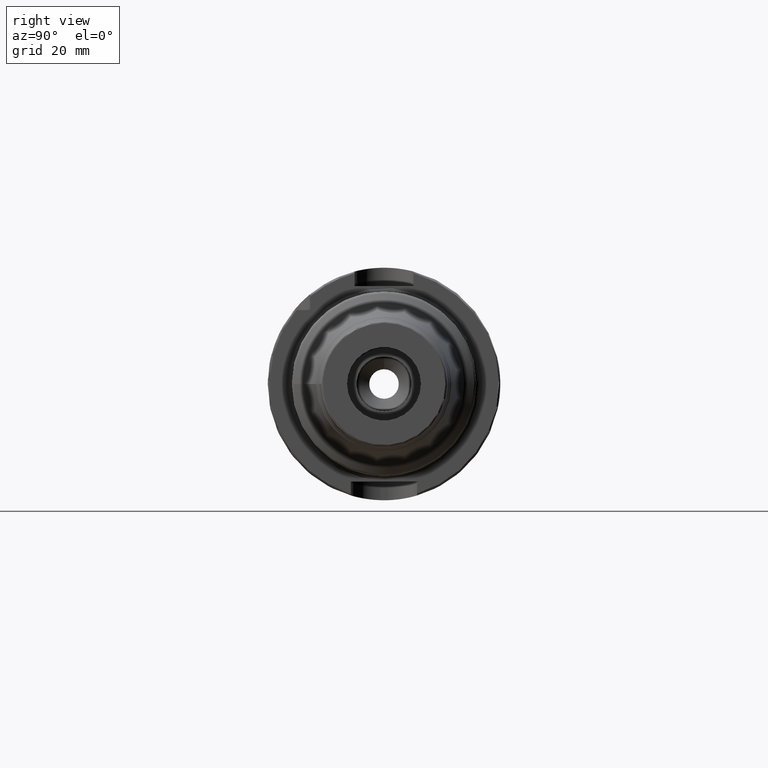
[diagram: clean part render]
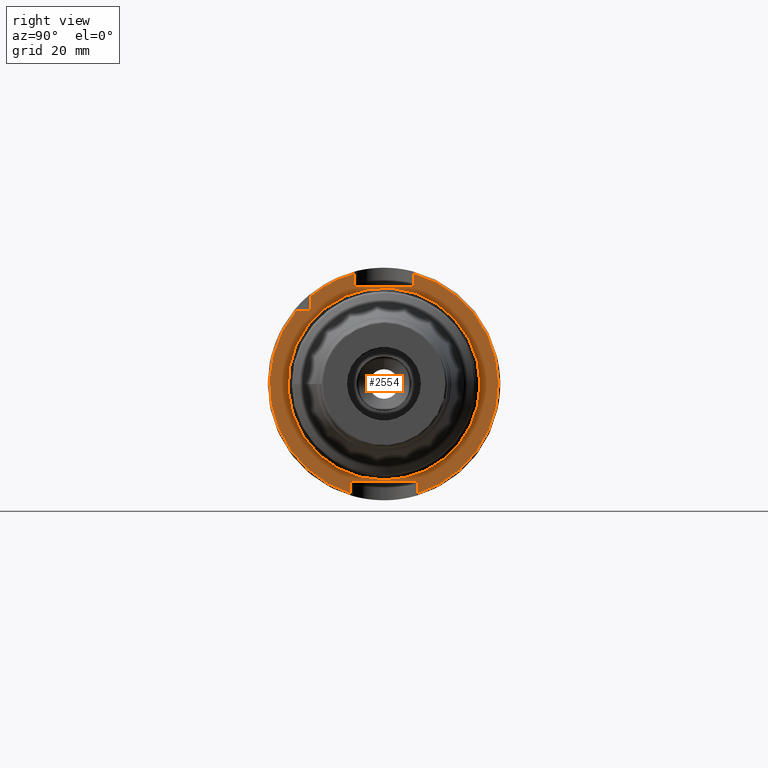
[diagram: same view with one face highlighted and labeled with its STEP entity id]
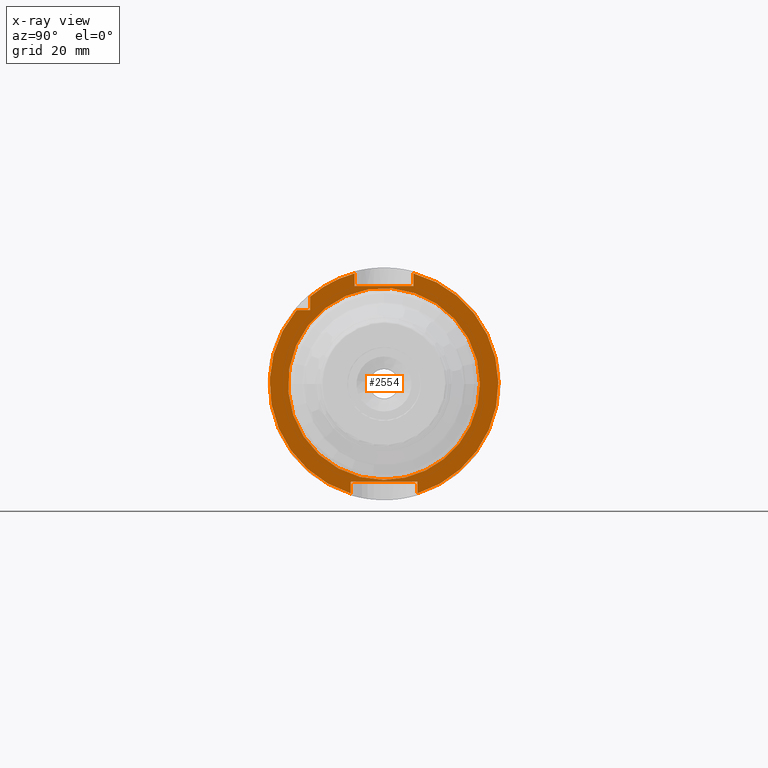
[diagram: x-ray of the same camera — body ghosted, the highlighted face saturated]
A machine part, right view. The second image highlights one B-rep face of the part: STEP entity #2554.
The next image is the same camera in x-ray: the body ghosted, the highlighted face saturated — about 0% of this face is hidden behind the body in this view.
In plain terms, the highlighted planar face has unit normal (1, 0, 0).
Its self-contained STEP definition (entity closure, byte-faithful):
#97=FACE_BOUND('',#585,.T.);
#108=PLANE('',#2733);
#187=LINE('',#3983,#304);
#188=LINE('',#3987,#305);
#189=LINE('',#3989,#306);
#190=LINE('',#3991,#307);
#191=LINE('',#3995,#308);
#192=LINE('',#3997,#309);
#193=LINE('',#3999,#310);
#194=LINE('',#4002,#311);
#304=VECTOR('',#3137,10.);
#305=VECTOR('',#3140,10.);
#306=VECTOR('',#3141,10.);
#307=VECTOR('',#3142,10.);
#308=VECTOR('',#3145,10.);
#309=VECTOR('',#3146,10.);
#310=VECTOR('',#3147,10.);
#311=VECTOR('',#3150,10.);
#448=FACE_OUTER_BOUND('',#584,.T.);
#584=EDGE_LOOP('',(#1715,#1716,#1717,#1718,#1719,#1720,#1721,#1722,#1723,
#1724,#1725));
#585=EDGE_LOOP('',(#1726,#1727));
#746=CIRCLE('',#2731,26.);
#747=CIRCLE('',#2732,26.);
#748=CIRCLE('',#2734,31.);
#749=CIRCLE('',#2735,31.);
#750=CIRCLE('',#2736,31.);
#969=VERTEX_POINT('',#3975);
#970=VERTEX_POINT('',#3977);
#971=VERTEX_POINT('',#3981);
#972=VERTEX_POINT('',#3982);
#973=VERTEX_POINT('',#3984);
#974=VERTEX_POINT('',#3986);
#975=VERTEX_POINT('',#3988);
#976=VERTEX_POINT('',#3990);
#977=VERTEX_POINT('',#3992);
#978=VERTEX_POINT('',#3994);
#979=VERTEX_POINT('',#3996);
#980=VERTEX_POINT('',#3998);
#981=VERTEX_POINT('',#4000);
#1269=EDGE_CURVE('',#969,#970,#746,.T.);
#1270=EDGE_CURVE('',#970,#969,#747,.T.);
#1271=EDGE_CURVE('',#971,#972,#187,.T.);
#1272=EDGE_CURVE('',#972,#973,#748,.T.);
#1273=EDGE_CURVE('',#973,#974,#188,.T.);
#1274=EDGE_CURVE('',#974,#975,#189,.T.);
#1275=EDGE_CURVE('',#975,#976,#190,.T.);
#1276=EDGE_CURVE('',#976,#977,#749,.T.);
#1277=EDGE_CURVE('',#977,#978,#191,.T.);
#1278=EDGE_CURVE('',#978,#979,#192,.T.);
#1279=EDGE_CURVE('',#979,#980,#193,.T.);
#1280=EDGE_CURVE('',#980,#981,#750,.T.);
#1281=EDGE_CURVE('',#981,#971,#194,.T.);
#1715=ORIENTED_EDGE('',*,*,#1271,.T.);
#1716=ORIENTED_EDGE('',*,*,#1272,.T.);
#1717=ORIENTED_EDGE('',*,*,#1273,.T.);
#1718=ORIENTED_EDGE('',*,*,#1274,.T.);
#1719=ORIENTED_EDGE('',*,*,#1275,.T.);
#1720=ORIENTED_EDGE('',*,*,#1276,.T.);
#1721=ORIENTED_EDGE('',*,*,#1277,.T.);
#1722=ORIENTED_EDGE('',*,*,#1278,.T.);
#1723=ORIENTED_EDGE('',*,*,#1279,.T.);
#1724=ORIENTED_EDGE('',*,*,#1280,.T.);
#1725=ORIENTED_EDGE('',*,*,#1281,.T.);
#1726=ORIENTED_EDGE('',*,*,#1270,.F.);
#1727=ORIENTED_EDGE('',*,*,#1269,.F.);
#2554=ADVANCED_FACE('',(#448,#97),#108,.T.);
#2731=AXIS2_PLACEMENT_3D('',#3978,#3131,#3132);
#2732=AXIS2_PLACEMENT_3D('',#3979,#3133,#3134);
#2733=AXIS2_PLACEMENT_3D('',#3980,#3135,#3136);
#2734=AXIS2_PLACEMENT_3D('',#3985,#3138,#3139);
#2735=AXIS2_PLACEMENT_3D('',#3993,#3143,#3144);
#2736=AXIS2_PLACEMENT_3D('',#4001,#3148,#3149);
#3131=DIRECTION('center_axis',(1.,0.,0.));
#3132=DIRECTION('ref_axis',(0.,-1.,-1.22464679914735E-16));
#3133=DIRECTION('center_axis',(1.,0.,0.));
#3134=DIRECTION('ref_axis',(0.,-1.,-1.22464679914735E-16));
#3135=DIRECTION('center_axis',(1.,0.,0.));
#3136=DIRECTION('ref_axis',(0.,0.,-1.));
#3137=DIRECTION('',(0.,-1.,0.));
#3138=DIRECTION('center_axis',(1.,0.,0.));
#3139=DIRECTION('ref_axis',(0.,0.,-1.));
#3140=DIRECTION('',(0.,0.,1.));
#3141=DIRECTION('',(0.,1.,0.));
#3142=DIRECTION('',(0.,0.,-1.));
#3143=DIRECTION('center_axis',(1.,0.,0.));
#3144=DIRECTION('ref_axis',(0.,0.,-1.));
#3145=DIRECTION('',(0.,0.,-1.));
#3146=DIRECTION('',(0.,-1.,0.));
#3147=DIRECTION('',(0.,0.,1.));
#3148=DIRECTION('center_axis',(1.,0.,0.));
#3149=DIRECTION('ref_axis',(0.,0.,-1.));
#3150=DIRECTION('',(0.,0.,-1.));
#3975=CARTESIAN_POINT('',(26.,-3.18408167778312E-15,-26.));
#3977=CARTESIAN_POINT('',(26.,26.,6.36816335556624E-15));
#3978=CARTESIAN_POINT('Origin',(26.,0.,0.));
#3979=CARTESIAN_POINT('Origin',(26.,0.,0.));
#3980=CARTESIAN_POINT('Origin',(26.,0.,0.));
#3981=CARTESIAN_POINT('',(26.,-20.,20.));
#3982=CARTESIAN_POINT('',(26.,-23.685438564654,20.));
#3983=CARTESIAN_POINT('',(26.,-12.,20.));
#3984=CARTESIAN_POINT('',(26.,-9.,-29.6647939483827));
#3985=CARTESIAN_POINT('Origin',(26.,0.,0.));
#3986=CARTESIAN_POINT('',(26.,-9.,-26.5));
#3987=CARTESIAN_POINT('',(26.,-9.,-13.25));
#3988=CARTESIAN_POINT('',(26.,9.,-26.5));
#3989=CARTESIAN_POINT('',(26.,1.94289029309402E-15,-26.5));
#3990=CARTESIAN_POINT('',(26.,9.,-29.6647939483827));
#3991=CARTESIAN_POINT('',(26.,9.,-13.25));
#3992=CARTESIAN_POINT('',(26.,8.,29.9499582637439));
#3993=CARTESIAN_POINT('Origin',(26.,0.,0.));
#3994=CARTESIAN_POINT('',(26.,8.,26.5));
#3995=CARTESIAN_POINT('',(26.,8.,13.25));
#3996=CARTESIAN_POINT('',(26.,-8.,26.5));
#3997=CARTESIAN_POINT('',(26.,5.55111512312578E-16,26.5));
#3998=CARTESIAN_POINT('',(26.,-8.,29.9499582637439));
#3999=CARTESIAN_POINT('',(26.,-8.,13.25));
#4000=CARTESIAN_POINT('',(26.,-20.,23.685438564654));
#4001=CARTESIAN_POINT('Origin',(26.,0.,0.));
#4002=CARTESIAN_POINT('',(26.,-20.,10.));